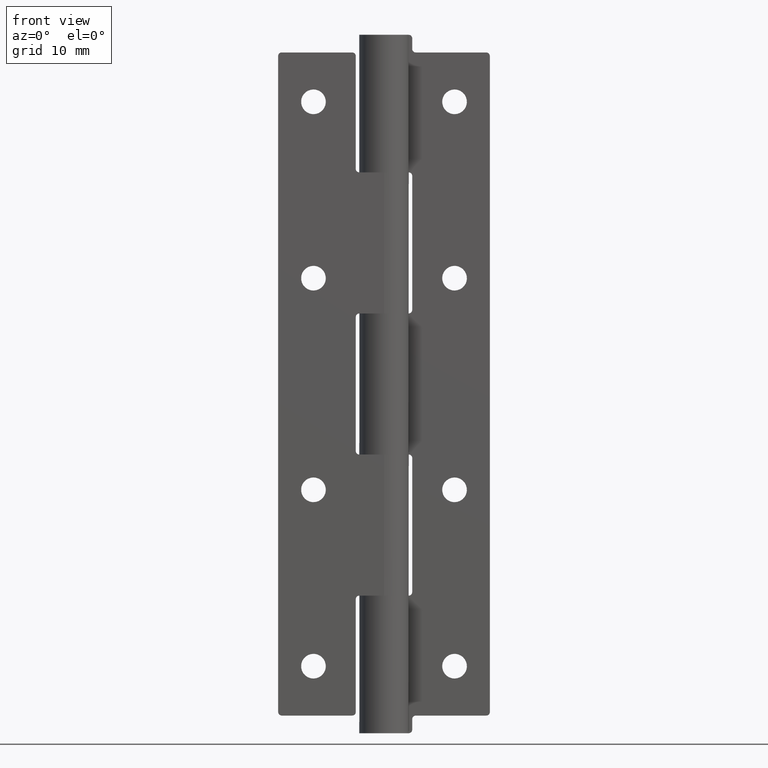
[diagram: clean part render]
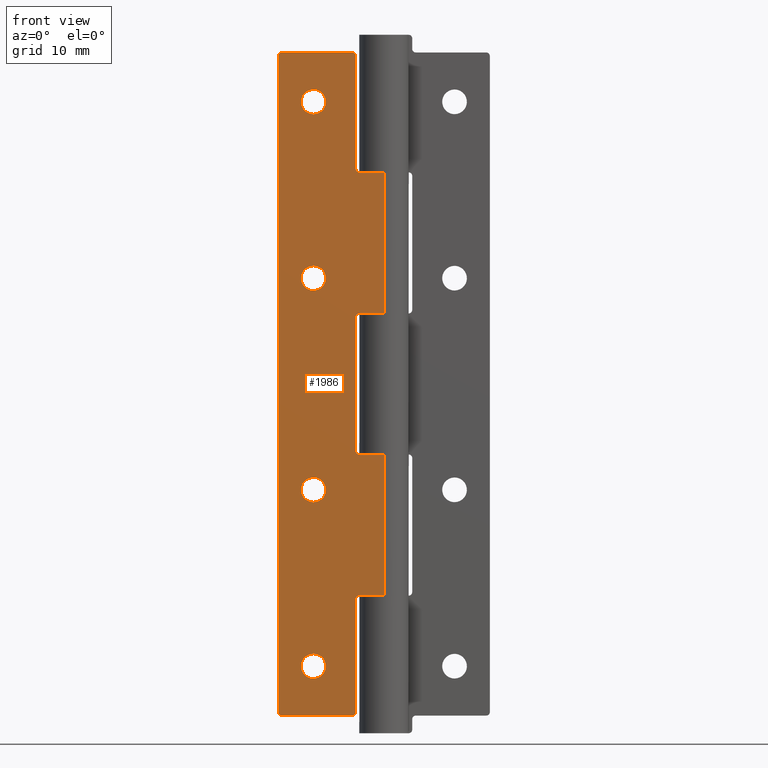
[diagram: same view with one face highlighted and labeled with its STEP entity id]
A machine part, front view. The second image highlights one B-rep face of the part: STEP entity #1986.
In plain terms, the highlighted face is a freeform B-spline surface patch.
Its self-contained STEP definition (entity closure, byte-faithful):
#317=CARTESIAN_POINT('',(-11.737766671125360,-3.499999999999950,89.706559910742385));
#318=VERTEX_POINT('',#317);
#319=CARTESIAN_POINT('',(-10.0,-3.499999999999950,87.750000000000000));
#320=VERTEX_POINT('',#319);
#321=CARTESIAN_POINT('',(-11.737766671125360,-3.499999999999951,89.706559910742385));
#322=CARTESIAN_POINT('',(-11.749999999999998,-3.499999999999950,89.603642209484875));
#323=CARTESIAN_POINT('',(-11.750000000000000,-3.499999999999950,89.500000000000000));
#324=CARTESIAN_POINT('',(-11.750000000000004,-3.499999999999950,87.750000000000000));
#325=CARTESIAN_POINT('',(-10.0,-3.499999999999950,87.750000000000000));
#333=(BOUNDED_CURVE()B_SPLINE_CURVE(2,(#321,#322,#323,#324,#325),.UNSPECIFIED.,.F.,.U.)B_SPLINE_CURVE_WITH_KNOTS((3,2,3),(0.229562473497545,0.250000000000000,0.500000000000000),.UNSPECIFIED.)CURVE()GEOMETRIC_REPRESENTATION_ITEM()RATIONAL_B_SPLINE_CURVE((0.956026754152410,0.976055948312443,1.0,0.707106781186547,1.0))REPRESENTATION_ITEM(''));
#334=EDGE_CURVE('',#318,#320,#333,.T.);
#336=CARTESIAN_POINT('',(-8.253264102773130,-3.499999999999950,89.393165055627662));
#337=VERTEX_POINT('',#336);
#338=CARTESIAN_POINT('',(-10.0,-3.499999999999950,87.750000000000000));
#339=CARTESIAN_POINT('',(-8.353764383266904,-3.499999999999951,87.749999999999986));
#340=CARTESIAN_POINT('',(-8.253264102773130,-3.499999999999950,89.393165055627662));
#348=(BOUNDED_CURVE()B_SPLINE_CURVE(2,(#338,#339,#340),.UNSPECIFIED.,.F.,.U.)B_SPLINE_CURVE_WITH_KNOTS((3,3),(0.500000000000000,0.739332962205157),.UNSPECIFIED.)CURVE()GEOMETRIC_REPRESENTATION_ITEM()RATIONAL_B_SPLINE_CURVE((1.0,0.719603993326293,0.976072041594307))REPRESENTATION_ITEM(''));
#349=EDGE_CURVE('',#320,#337,#348,.T.);
#416=CARTESIAN_POINT('',(-10.0,-3.499999999999950,91.250000000000000));
#417=VERTEX_POINT('',#416);
#418=CARTESIAN_POINT('',(-10.0,-3.499999999999950,91.250000000000000));
#419=CARTESIAN_POINT('',(-11.554305420247266,-3.499999999999952,91.249999999999986));
#420=CARTESIAN_POINT('',(-11.737766671125360,-3.499999999999951,89.706559910742385));
#428=(BOUNDED_CURVE()B_SPLINE_CURVE(2,(#418,#419,#420),.UNSPECIFIED.,.F.,.U.)B_SPLINE_CURVE_WITH_KNOTS((3,3),(0.0,0.229562473497545),.UNSPECIFIED.)CURVE()GEOMETRIC_REPRESENTATION_ITEM()RATIONAL_B_SPLINE_CURVE((1.0,0.731050832874105,0.956026754152410))REPRESENTATION_ITEM(''));
#429=EDGE_CURVE('',#417,#318,#428,.T.);
#463=CARTESIAN_POINT('',(-8.253264102773130,-3.499999999999951,89.393165055627662));
#464=CARTESIAN_POINT('',(-8.250000000000000,-3.499999999999951,89.446532664040618));
#465=CARTESIAN_POINT('',(-8.250000000000000,-3.499999999999950,89.500000000000000));
#466=CARTESIAN_POINT('',(-8.250000000000000,-3.499999999999950,91.249999999999986));
#467=CARTESIAN_POINT('',(-10.0,-3.499999999999950,91.250000000000000));
#475=(BOUNDED_CURVE()B_SPLINE_CURVE(2,(#463,#464,#465,#466,#467),.UNSPECIFIED.,.F.,.U.)B_SPLINE_CURVE_WITH_KNOTS((3,2,3),(0.739332962205156,0.750000000000000,1.0),.UNSPECIFIED.)CURVE()GEOMETRIC_REPRESENTATION_ITEM()RATIONAL_B_SPLINE_CURVE((0.976072041594305,0.987502787860253,1.0,0.707106781186547,1.0))REPRESENTATION_ITEM(''));
#476=EDGE_CURVE('',#337,#417,#475,.T.);
#503=CARTESIAN_POINT('',(-11.737766671125360,-3.499999999999950,64.706559910742371));
#504=VERTEX_POINT('',#503);
#505=CARTESIAN_POINT('',(-10.0,-3.499999999999950,62.750000000000000));
#506=VERTEX_POINT('',#505);
#507=CARTESIAN_POINT('',(-11.737766671125355,-3.499999999999951,64.706559910742371));
#508=CARTESIAN_POINT('',(-11.749999999999998,-3.499999999999950,64.603642209484860));
#509=CARTESIAN_POINT('',(-11.750000000000000,-3.499999999999950,64.500000000000000));
#510=CARTESIAN_POINT('',(-11.750000000000004,-3.499999999999950,62.750000000000000));
#511=CARTESIAN_POINT('',(-10.0,-3.499999999999950,62.750000000000000));
#519=(BOUNDED_CURVE()B_SPLINE_CURVE(2,(#507,#508,#509,#510,#511),.UNSPECIFIED.,.F.,.U.)B_SPLINE_CURVE_WITH_KNOTS((3,2,3),(0.229562473497548,0.250000000000000,0.500000000000000),.UNSPECIFIED.)CURVE()GEOMETRIC_REPRESENTATION_ITEM()RATIONAL_B_SPLINE_CURVE((0.956026754152416,0.976055948312446,1.0,0.707106781186547,1.0))REPRESENTATION_ITEM(''));
#520=EDGE_CURVE('',#504,#506,#519,.T.);
#522=CARTESIAN_POINT('',(-8.253264102773130,-3.499999999999950,64.393165055627662));
#523=VERTEX_POINT('',#522);
#524=CARTESIAN_POINT('',(-10.0,-3.499999999999950,62.750000000000000));
#525=CARTESIAN_POINT('',(-8.353764383266904,-3.499999999999951,62.749999999999993));
#526=CARTESIAN_POINT('',(-8.253264102773130,-3.499999999999950,64.393165055627662));
#534=(BOUNDED_CURVE()B_SPLINE_CURVE(2,(#524,#525,#526),.UNSPECIFIED.,.F.,.U.)B_SPLINE_CURVE_WITH_KNOTS((3,3),(0.500000000000000,0.739332962205157),.UNSPECIFIED.)CURVE()GEOMETRIC_REPRESENTATION_ITEM()RATIONAL_B_SPLINE_CURVE((1.0,0.719603993326293,0.976072041594307))REPRESENTATION_ITEM(''));
#535=EDGE_CURVE('',#506,#523,#534,.T.);
#602=CARTESIAN_POINT('',(-10.0,-3.499999999999950,66.250000000000000));
#603=VERTEX_POINT('',#602);
#604=CARTESIAN_POINT('',(-10.0,-3.499999999999950,66.250000000000000));
#605=CARTESIAN_POINT('',(-11.554305420247292,-3.499999999999951,66.250000000000000));
#606=CARTESIAN_POINT('',(-11.737766671125355,-3.499999999999951,64.706559910742371));
#614=(BOUNDED_CURVE()B_SPLINE_CURVE(2,(#604,#605,#606),.UNSPECIFIED.,.F.,.U.)B_SPLINE_CURVE_WITH_KNOTS((3,3),(0.0,0.229562473497548),.UNSPECIFIED.)CURVE()GEOMETRIC_REPRESENTATION_ITEM()RATIONAL_B_SPLINE_CURVE((1.0,0.731050832874101,0.956026754152416))REPRESENTATION_ITEM(''));
#615=EDGE_CURVE('',#603,#504,#614,.T.);
#649=CARTESIAN_POINT('',(-8.253264102773130,-3.499999999999951,64.393165055627662));
#650=CARTESIAN_POINT('',(-8.250000000000000,-3.499999999999951,64.446532664040618));
#651=CARTESIAN_POINT('',(-8.250000000000000,-3.499999999999950,64.500000000000000));
#652=CARTESIAN_POINT('',(-8.250000000000000,-3.499999999999950,66.250000000000000));
#653=CARTESIAN_POINT('',(-10.0,-3.499999999999950,66.250000000000000));
#661=(BOUNDED_CURVE()B_SPLINE_CURVE(2,(#649,#650,#651,#652,#653),.UNSPECIFIED.,.F.,.U.)B_SPLINE_CURVE_WITH_KNOTS((3,2,3),(0.739332962205156,0.750000000000000,1.0),.UNSPECIFIED.)CURVE()GEOMETRIC_REPRESENTATION_ITEM()RATIONAL_B_SPLINE_CURVE((0.976072041594305,0.987502787860253,1.0,0.707106781186547,1.0))REPRESENTATION_ITEM(''));
#662=EDGE_CURVE('',#523,#603,#661,.T.);
#689=CARTESIAN_POINT('',(-11.737766671125360,-3.499999999999950,34.706559910742357));
#690=VERTEX_POINT('',#689);
#691=CARTESIAN_POINT('',(-10.0,-3.499999999999950,32.750000000000000));
#692=VERTEX_POINT('',#691);
#693=CARTESIAN_POINT('',(-11.737766671125364,-3.499999999999951,34.706559910742357));
#694=CARTESIAN_POINT('',(-11.749999999999998,-3.499999999999950,34.603642209484846));
#695=CARTESIAN_POINT('',(-11.750000000000000,-3.499999999999950,34.500000000000000));
#696=CARTESIAN_POINT('',(-11.750000000000004,-3.499999999999950,32.750000000000000));
#697=CARTESIAN_POINT('',(-10.0,-3.499999999999950,32.750000000000000));
#705=(BOUNDED_CURVE()B_SPLINE_CURVE(2,(#693,#694,#695,#696,#697),.UNSPECIFIED.,.F.,.U.)B_SPLINE_CURVE_WITH_KNOTS((3,2,3),(0.229562473497549,0.250000000000000,0.500000000000000),.UNSPECIFIED.)CURVE()GEOMETRIC_REPRESENTATION_ITEM()RATIONAL_B_SPLINE_CURVE((0.956026754152419,0.976055948312448,1.0,0.707106781186547,1.0))REPRESENTATION_ITEM(''));
#706=EDGE_CURVE('',#690,#692,#705,.T.);
#708=CARTESIAN_POINT('',(-8.253264102773130,-3.499999999999950,34.393165055627676));
#709=VERTEX_POINT('',#708);
#710=CARTESIAN_POINT('',(-10.0,-3.499999999999950,32.750000000000000));
#711=CARTESIAN_POINT('',(-8.353764383266904,-3.499999999999951,32.750000000000007));
#712=CARTESIAN_POINT('',(-8.253264102773130,-3.499999999999950,34.393165055627676));
#720=(BOUNDED_CURVE()B_SPLINE_CURVE(2,(#710,#711,#712),.UNSPECIFIED.,.F.,.U.)B_SPLINE_CURVE_WITH_KNOTS((3,3),(0.500000000000000,0.739332962205157),.UNSPECIFIED.)CURVE()GEOMETRIC_REPRESENTATION_ITEM()RATIONAL_B_SPLINE_CURVE((1.0,0.719603993326293,0.976072041594307))REPRESENTATION_ITEM(''));
#721=EDGE_CURVE('',#692,#709,#720,.T.);
#788=CARTESIAN_POINT('',(-10.0,-3.499999999999950,36.250000000000007));
#789=VERTEX_POINT('',#788);
#790=CARTESIAN_POINT('',(-10.0,-3.499999999999950,36.250000000000007));
#791=CARTESIAN_POINT('',(-11.554305420247307,-3.499999999999951,36.250000000000007));
#792=CARTESIAN_POINT('',(-11.737766671125360,-3.499999999999950,34.706559910742357));
#800=(BOUNDED_CURVE()B_SPLINE_CURVE(2,(#790,#791,#792),.UNSPECIFIED.,.F.,.U.)B_SPLINE_CURVE_WITH_KNOTS((3,3),(0.0,0.229562473497549),.UNSPECIFIED.)CURVE()GEOMETRIC_REPRESENTATION_ITEM()RATIONAL_B_SPLINE_CURVE((1.0,0.731050832874100,0.956026754152419))REPRESENTATION_ITEM(''));
#801=EDGE_CURVE('',#789,#690,#800,.T.);
#835=CARTESIAN_POINT('',(-8.253264102773130,-3.499999999999950,34.393165055627669));
#836=CARTESIAN_POINT('',(-8.250000000000000,-3.499999999999951,34.446532664040618));
#837=CARTESIAN_POINT('',(-8.250000000000000,-3.499999999999950,34.500000000000000));
#838=CARTESIAN_POINT('',(-8.250000000000000,-3.499999999999950,36.250000000000007));
#839=CARTESIAN_POINT('',(-10.0,-3.499999999999950,36.250000000000007));
#847=(BOUNDED_CURVE()B_SPLINE_CURVE(2,(#835,#836,#837,#838,#839),.UNSPECIFIED.,.F.,.U.)B_SPLINE_CURVE_WITH_KNOTS((3,2,3),(0.739332962205156,0.750000000000000,1.0),.UNSPECIFIED.)CURVE()GEOMETRIC_REPRESENTATION_ITEM()RATIONAL_B_SPLINE_CURVE((0.976072041594307,0.987502787860254,1.0,0.707106781186547,1.0))REPRESENTATION_ITEM(''));
#848=EDGE_CURVE('',#709,#789,#847,.T.);
#875=CARTESIAN_POINT('',(-11.737766671125360,-3.499999999999951,9.706559910742364));
#876=VERTEX_POINT('',#875);
#877=CARTESIAN_POINT('',(-10.0,-3.499999999999950,7.750000000000000));
#878=VERTEX_POINT('',#877);
#879=CARTESIAN_POINT('',(-11.737766671125362,-3.499999999999951,9.706559910742364));
#880=CARTESIAN_POINT('',(-11.750000000000002,-3.499999999999950,9.603642209484862));
#881=CARTESIAN_POINT('',(-11.750000000000000,-3.499999999999950,9.500000000000000));
#882=CARTESIAN_POINT('',(-11.750000000000004,-3.499999999999950,7.750000000000001));
#883=CARTESIAN_POINT('',(-10.0,-3.499999999999950,7.750000000000000));
#891=(BOUNDED_CURVE()B_SPLINE_CURVE(2,(#879,#880,#881,#882,#883),.UNSPECIFIED.,.F.,.U.)B_SPLINE_CURVE_WITH_KNOTS((3,2,3),(0.229562473497548,0.250000000000000,0.500000000000000),.UNSPECIFIED.)CURVE()GEOMETRIC_REPRESENTATION_ITEM()RATIONAL_B_SPLINE_CURVE((0.956026754152417,0.976055948312447,1.0,0.707106781186547,1.0))REPRESENTATION_ITEM(''));
#892=EDGE_CURVE('',#876,#878,#891,.T.);
#894=CARTESIAN_POINT('',(-8.253264102773130,-3.499999999999950,9.393165055627669));
#895=VERTEX_POINT('',#894);
#896=CARTESIAN_POINT('',(-10.0,-3.499999999999950,7.750000000000000));
#897=CARTESIAN_POINT('',(-8.353764383266904,-3.499999999999951,7.749999999999999));
#898=CARTESIAN_POINT('',(-8.253264102773130,-3.499999999999950,9.393165055627669));
#906=(BOUNDED_CURVE()B_SPLINE_CURVE(2,(#896,#897,#898),.UNSPECIFIED.,.F.,.U.)B_SPLINE_CURVE_WITH_KNOTS((3,3),(0.500000000000000,0.739332962205157),.UNSPECIFIED.)CURVE()GEOMETRIC_REPRESENTATION_ITEM()RATIONAL_B_SPLINE_CURVE((1.0,0.719603993326293,0.976072041594307))REPRESENTATION_ITEM(''));
#907=EDGE_CURVE('',#878,#895,#906,.T.);
#974=CARTESIAN_POINT('',(-10.0,-3.499999999999950,11.250000000000000));
#975=VERTEX_POINT('',#974);
#976=CARTESIAN_POINT('',(-10.0,-3.499999999999950,11.250000000000000));
#977=CARTESIAN_POINT('',(-11.554305420247298,-3.499999999999951,11.250000000000000));
#978=CARTESIAN_POINT('',(-11.737766671125353,-3.499999999999951,9.706559910742364));
#986=(BOUNDED_CURVE()B_SPLINE_CURVE(2,(#976,#977,#978),.UNSPECIFIED.,.F.,.U.)B_SPLINE_CURVE_WITH_KNOTS((3,3),(0.0,0.229562473497548),.UNSPECIFIED.)CURVE()GEOMETRIC_REPRESENTATION_ITEM()RATIONAL_B_SPLINE_CURVE((1.0,0.731050832874101,0.956026754152417))REPRESENTATION_ITEM(''));
#987=EDGE_CURVE('',#975,#876,#986,.T.);
#1021=CARTESIAN_POINT('',(-8.253264102773130,-3.499999999999950,9.393165055627669));
#1022=CARTESIAN_POINT('',(-8.250000000000000,-3.499999999999950,9.446532664040618));
#1023=CARTESIAN_POINT('',(-8.250000000000000,-3.499999999999950,9.500000000000000));
#1024=CARTESIAN_POINT('',(-8.250000000000000,-3.499999999999950,11.250000000000000));
#1025=CARTESIAN_POINT('',(-10.0,-3.499999999999950,11.250000000000000));
#1033=(BOUNDED_CURVE()B_SPLINE_CURVE(2,(#1021,#1022,#1023,#1024,#1025),.UNSPECIFIED.,.F.,.U.)B_SPLINE_CURVE_WITH_KNOTS((3,2,3),(0.739332962205156,0.750000000000000,1.0),.UNSPECIFIED.)CURVE()GEOMETRIC_REPRESENTATION_ITEM()RATIONAL_B_SPLINE_CURVE((0.976072041594306,0.987502787860253,1.0,0.707106781186547,1.0))REPRESENTATION_ITEM(''));
#1034=EDGE_CURVE('',#895,#975,#1033,.T.);
#1070=CARTESIAN_POINT('',(-4.0,-3.499999999999950,40.0));
#1071=VERTEX_POINT('',#1070);
#1077=CARTESIAN_POINT('',(-3.500000000000000,-3.499999999999950,39.500000000000000));
#1078=VERTEX_POINT('',#1077);
#1079=CARTESIAN_POINT('',(-3.500000000000000,-3.499999999999950,39.500000000000000));
#1080=CARTESIAN_POINT('',(-4.000000000000000,-3.499999999999949,39.500000000000000));
#1081=CARTESIAN_POINT('',(-4.0,-3.499999999999950,40.0));
#1089=(BOUNDED_CURVE()B_SPLINE_CURVE(2,(#1079,#1080,#1081),.UNSPECIFIED.,.F.,.U.)CURVE()GEOMETRIC_REPRESENTATION_ITEM()QUASI_UNIFORM_CURVE()RATIONAL_B_SPLINE_CURVE((1.0,0.707106781186548,1.0))REPRESENTATION_ITEM(''));
#1090=EDGE_CURVE('',#1078,#1071,#1089,.T.);
#1131=CARTESIAN_POINT('',(-3.500000000000000,-3.499999999999950,59.500000000000000));
#1132=VERTEX_POINT('',#1131);
#1138=CARTESIAN_POINT('',(-4.0,-3.499999999999950,59.0));
#1139=VERTEX_POINT('',#1138);
#1140=CARTESIAN_POINT('',(-4.0,-3.499999999999950,59.0));
#1141=CARTESIAN_POINT('',(-4.000000000000000,-3.499999999999949,59.500000000000007));
#1142=CARTESIAN_POINT('',(-3.500000000000000,-3.499999999999950,59.500000000000000));
#1150=(BOUNDED_CURVE()B_SPLINE_CURVE(2,(#1140,#1141,#1142),.UNSPECIFIED.,.F.,.U.)CURVE()GEOMETRIC_REPRESENTATION_ITEM()QUASI_UNIFORM_CURVE()RATIONAL_B_SPLINE_CURVE((1.0,0.707106781186548,1.0))REPRESENTATION_ITEM(''));
#1151=EDGE_CURVE('',#1139,#1132,#1150,.T.);
#1192=CARTESIAN_POINT('',(-3.500000000000000,-3.499999999999950,19.500000000000000));
#1193=VERTEX_POINT('',#1192);
#1199=CARTESIAN_POINT('',(-4.0,-3.499999999999950,19.0));
#1200=VERTEX_POINT('',#1199);
#1201=CARTESIAN_POINT('',(-4.0,-3.499999999999950,19.0));
#1202=CARTESIAN_POINT('',(-4.000000000000000,-3.499999999999949,19.500000000000004));
#1203=CARTESIAN_POINT('',(-3.500000000000000,-3.499999999999950,19.500000000000000));
#1211=(BOUNDED_CURVE()B_SPLINE_CURVE(2,(#1201,#1202,#1203),.UNSPECIFIED.,.F.,.U.)CURVE()GEOMETRIC_REPRESENTATION_ITEM()QUASI_UNIFORM_CURVE()RATIONAL_B_SPLINE_CURVE((1.0,0.707106781186548,1.0))REPRESENTATION_ITEM(''));
#1212=EDGE_CURVE('',#1200,#1193,#1211,.T.);
#1236=CARTESIAN_POINT('',(-15.0,-3.500000000000000,3.0));
#1237=VERTEX_POINT('',#1236);
#1238=CARTESIAN_POINT('',(-14.500000000000000,-3.500000000000000,2.500000000000000));
#1239=VERTEX_POINT('',#1238);
#1240=CARTESIAN_POINT('',(-15.0,-3.500000000000000,3.0));
#1241=CARTESIAN_POINT('',(-15.000000000000009,-3.499999999999999,2.500000000000000));
#1242=CARTESIAN_POINT('',(-14.500000000000000,-3.500000000000000,2.500000000000000));
#1250=(BOUNDED_CURVE()B_SPLINE_CURVE(2,(#1240,#1241,#1242),.UNSPECIFIED.,.F.,.U.)CURVE()GEOMETRIC_REPRESENTATION_ITEM()QUASI_UNIFORM_CURVE()RATIONAL_B_SPLINE_CURVE((1.0,0.707106781186548,1.0))REPRESENTATION_ITEM(''));
#1251=EDGE_CURVE('',#1237,#1239,#1250,.T.);
#1314=CARTESIAN_POINT('',(-4.0,-3.499999999999950,3.0));
#1315=VERTEX_POINT('',#1314);
#1321=CARTESIAN_POINT('',(-4.500000000000000,-3.500000000000000,2.500000000000000));
#1322=VERTEX_POINT('',#1321);
#1323=CARTESIAN_POINT('',(-4.500000000000000,-3.500000000000000,2.500000000000000));
#1324=CARTESIAN_POINT('',(-4.000000000000000,-3.499999999999999,2.500000000000000));
#1325=CARTESIAN_POINT('',(-4.0,-3.499999999999950,3.0));
#1333=(BOUNDED_CURVE()B_SPLINE_CURVE(2,(#1323,#1324,#1325),.UNSPECIFIED.,.F.,.U.)CURVE()GEOMETRIC_REPRESENTATION_ITEM()QUASI_UNIFORM_CURVE()RATIONAL_B_SPLINE_CURVE((1.0,0.707106781186548,1.0))REPRESENTATION_ITEM(''));
#1334=EDGE_CURVE('',#1322,#1315,#1333,.T.);
#1375=CARTESIAN_POINT('',(-4.0,-3.499999999999950,80.0));
#1376=VERTEX_POINT('',#1375);
#1382=CARTESIAN_POINT('',(-3.500000000000000,-3.499999999999950,79.500000000000000));
#1383=VERTEX_POINT('',#1382);
#1384=CARTESIAN_POINT('',(-3.500000000000000,-3.499999999999950,79.500000000000000));
#1385=CARTESIAN_POINT('',(-4.000000000000000,-3.499999999999949,79.500000000000014));
#1386=CARTESIAN_POINT('',(-4.0,-3.499999999999950,80.0));
#1394=(BOUNDED_CURVE()B_SPLINE_CURVE(2,(#1384,#1385,#1386),.UNSPECIFIED.,.F.,.U.)CURVE()GEOMETRIC_REPRESENTATION_ITEM()QUASI_UNIFORM_CURVE()RATIONAL_B_SPLINE_CURVE((1.0,0.707106781186548,1.0))REPRESENTATION_ITEM(''));
#1395=EDGE_CURVE('',#1383,#1376,#1394,.T.);
#1419=CARTESIAN_POINT('',(-14.500000000000000,-3.500000000000000,96.500000000000000));
#1420=VERTEX_POINT('',#1419);
#1421=CARTESIAN_POINT('',(-15.0,-3.500000000000000,96.0));
#1422=VERTEX_POINT('',#1421);
#1423=CARTESIAN_POINT('',(-14.500000000000000,-3.500000000000000,96.500000000000000));
#1424=CARTESIAN_POINT('',(-15.000000000000009,-3.499999999999999,96.500000000000014));
#1425=CARTESIAN_POINT('',(-15.0,-3.500000000000000,96.0));
#1433=(BOUNDED_CURVE()B_SPLINE_CURVE(2,(#1423,#1424,#1425),.UNSPECIFIED.,.F.,.U.)CURVE()GEOMETRIC_REPRESENTATION_ITEM()QUASI_UNIFORM_CURVE()RATIONAL_B_SPLINE_CURVE((1.0,0.707106781186548,1.0))REPRESENTATION_ITEM(''));
#1434=EDGE_CURVE('',#1420,#1422,#1433,.T.);
#1497=CARTESIAN_POINT('',(-4.500000000000000,-3.500000000000000,96.500000000000000));
#1498=VERTEX_POINT('',#1497);
#1504=CARTESIAN_POINT('',(-4.0,-3.499999999999950,96.0));
#1505=VERTEX_POINT('',#1504);
#1506=CARTESIAN_POINT('',(-4.0,-3.499999999999950,96.0));
#1507=CARTESIAN_POINT('',(-4.000000000000000,-3.499999999999949,96.500000000000014));
#1508=CARTESIAN_POINT('',(-4.500000000000000,-3.499999999999950,96.500000000000000));
#1516=(BOUNDED_CURVE()B_SPLINE_CURVE(2,(#1506,#1507,#1508),.UNSPECIFIED.,.F.,.U.)CURVE()GEOMETRIC_REPRESENTATION_ITEM()QUASI_UNIFORM_CURVE()RATIONAL_B_SPLINE_CURVE((1.0,0.707106781186548,1.0))REPRESENTATION_ITEM(''));
#1517=EDGE_CURVE('',#1505,#1498,#1516,.T.);
#1540=CARTESIAN_POINT('',(0.0,-3.499999999999950,39.500000000000000));
#1541=VERTEX_POINT('',#1540);
#1542=CARTESIAN_POINT('',(0.0,-3.499999999999950,39.500000000000000));
#1543=CARTESIAN_POINT('',(-3.500000000000000,-3.499999999999950,39.500000000000000));
#1544=QUASI_UNIFORM_CURVE('',1,(#1542,#1543),.UNSPECIFIED.,.F.,.U.);
#1545=EDGE_CURVE('',#1541,#1078,#1544,.T.);
#1602=CARTESIAN_POINT('',(0.0,-3.499999999999950,59.500000000000000));
#1603=VERTEX_POINT('',#1602);
#1604=CARTESIAN_POINT('',(-3.500000000000000,-3.499999999999950,59.500000000000000));
#1605=CARTESIAN_POINT('',(0.0,-3.499999999999950,59.500000000000000));
#1606=QUASI_UNIFORM_CURVE('',1,(#1604,#1605),.UNSPECIFIED.,.F.,.U.);
#1607=EDGE_CURVE('',#1132,#1603,#1606,.T.);
#1678=CARTESIAN_POINT('',(-4.0,-3.499999999999950,40.0));
#1679=CARTESIAN_POINT('',(-4.0,-3.499999999999950,59.0));
#1680=QUASI_UNIFORM_CURVE('',1,(#1678,#1679),.UNSPECIFIED.,.F.,.U.);
#1681=EDGE_CURVE('',#1071,#1139,#1680,.T.);
#1700=CARTESIAN_POINT('',(0.0,-3.499999999999950,79.500000000000000));
#1701=VERTEX_POINT('',#1700);
#1702=CARTESIAN_POINT('',(-3.500000000000000,-3.499999999999950,79.500000000000000));
#1703=CARTESIAN_POINT('',(0.0,-3.499999999999950,79.500000000000000));
#1704=QUASI_UNIFORM_CURVE('',1,(#1702,#1703),.UNSPECIFIED.,.F.,.U.);
#1705=EDGE_CURVE('',#1383,#1701,#1704,.T.);
#1762=CARTESIAN_POINT('',(-4.0,-3.499999999999950,96.0));
#1763=CARTESIAN_POINT('',(-4.0,-3.499999999999950,80.0));
#1764=QUASI_UNIFORM_CURVE('',1,(#1762,#1763),.UNSPECIFIED.,.F.,.U.);
#1765=EDGE_CURVE('',#1505,#1376,#1764,.T.);
#1782=CARTESIAN_POINT('',(0.0,-3.499999999999950,19.500000000000000));
#1783=VERTEX_POINT('',#1782);
#1784=CARTESIAN_POINT('',(-3.500000000000000,-3.499999999999950,19.500000000000000));
#1785=CARTESIAN_POINT('',(0.0,-3.499999999999950,19.500000000000000));
#1786=QUASI_UNIFORM_CURVE('',1,(#1784,#1785),.UNSPECIFIED.,.F.,.U.);
#1787=EDGE_CURVE('',#1193,#1783,#1786,.T.);
#1858=CARTESIAN_POINT('',(-4.0,-3.499999999999950,3.0));
#1859=CARTESIAN_POINT('',(-4.0,-3.499999999999950,19.0));
#1860=QUASI_UNIFORM_CURVE('',1,(#1858,#1859),.UNSPECIFIED.,.F.,.U.);
#1861=EDGE_CURVE('',#1315,#1200,#1860,.T.);
#1878=CARTESIAN_POINT('',(-15.0,-3.500000000000000,96.0));
#1879=CARTESIAN_POINT('',(-15.0,-3.500000000000000,3.0));
#1880=QUASI_UNIFORM_CURVE('',1,(#1878,#1879),.UNSPECIFIED.,.F.,.U.);
#1881=EDGE_CURVE('',#1422,#1237,#1880,.T.);
#1898=CARTESIAN_POINT('',(-4.500000000000000,-3.500000000000000,2.500000000000000));
#1899=CARTESIAN_POINT('',(-14.500000000000000,-3.500000000000000,2.500000000000000));
#1900=QUASI_UNIFORM_CURVE('',1,(#1898,#1899),.UNSPECIFIED.,.F.,.U.);
#1901=EDGE_CURVE('',#1322,#1239,#1900,.T.);
#1912=CARTESIAN_POINT('',(-4.500000000000000,-3.500000000000000,96.500000000000000));
#1913=CARTESIAN_POINT('',(-14.500000000000000,-3.500000000000000,96.500000000000000));
#1914=QUASI_UNIFORM_CURVE('',1,(#1912,#1913),.UNSPECIFIED.,.F.,.U.);
#1915=EDGE_CURVE('',#1498,#1420,#1914,.T.);
#1927=CARTESIAN_POINT('',(-15.749249970927091,-3.500000000000000,101.195299817809800));
#1928=CARTESIAN_POINT('',(-15.749249970927091,-3.500000000000000,-2.195302339086233));
#1929=CARTESIAN_POINT('',(0.749250373258442,-3.500000000000000,101.195299817809800));
#1930=CARTESIAN_POINT('',(0.749250373258442,-3.500000000000000,-2.195302339086233));
#1931=B_SPLINE_SURFACE_WITH_KNOTS('',1,1,((#1927,#1929),(#1928,#1930)),.UNSPECIFIED.,.F.,.F.,.U.,(2,2),(2,2),(0.0,103.390602156895990),(0.0,16.498500344185530),.UNSPECIFIED.);
#1932=ORIENTED_EDGE('',*,*,#1901,.F.);
#1933=ORIENTED_EDGE('',*,*,#1334,.T.);
#1934=ORIENTED_EDGE('',*,*,#1861,.T.);
#1935=ORIENTED_EDGE('',*,*,#1212,.T.);
#1936=ORIENTED_EDGE('',*,*,#1787,.T.);
#1937=CARTESIAN_POINT('',(0.0,-3.499999999999950,39.500000000000000));
#1938=CARTESIAN_POINT('',(0.0,-3.499999999999950,19.500000000000000));
#1939=QUASI_UNIFORM_CURVE('',1,(#1937,#1938),.UNSPECIFIED.,.F.,.U.);
#1940=EDGE_CURVE('',#1541,#1783,#1939,.T.);
#1941=ORIENTED_EDGE('',*,*,#1940,.F.);
#1942=ORIENTED_EDGE('',*,*,#1545,.T.);
#1943=ORIENTED_EDGE('',*,*,#1090,.T.);
#1944=ORIENTED_EDGE('',*,*,#1681,.T.);
#1945=ORIENTED_EDGE('',*,*,#1151,.T.);
#1946=ORIENTED_EDGE('',*,*,#1607,.T.);
#1947=CARTESIAN_POINT('',(0.0,-3.499999999999950,79.500000000000000));
#1948=CARTESIAN_POINT('',(0.0,-3.499999999999950,59.500000000000000));
#1949=QUASI_UNIFORM_CURVE('',1,(#1947,#1948),.UNSPECIFIED.,.F.,.U.);
#1950=EDGE_CURVE('',#1701,#1603,#1949,.T.);
#1951=ORIENTED_EDGE('',*,*,#1950,.F.);
#1952=ORIENTED_EDGE('',*,*,#1705,.F.);
#1953=ORIENTED_EDGE('',*,*,#1395,.T.);
#1954=ORIENTED_EDGE('',*,*,#1765,.F.);
#1955=ORIENTED_EDGE('',*,*,#1517,.T.);
#1956=ORIENTED_EDGE('',*,*,#1915,.T.);
#1957=ORIENTED_EDGE('',*,*,#1434,.T.);
#1958=ORIENTED_EDGE('',*,*,#1881,.T.);
#1959=ORIENTED_EDGE('',*,*,#1251,.T.);
#1960=EDGE_LOOP('',(#1932,#1933,#1934,#1935,#1936,#1941,#1942,#1943,#1944,#1945,#1946,#1951,#1952,#1953,#1954,#1955,#1956,#1957,#1958,#1959));
#1961=FACE_OUTER_BOUND('',#1960,.T.);
#1962=ORIENTED_EDGE('',*,*,#907,.F.);
#1963=ORIENTED_EDGE('',*,*,#892,.F.);
#1964=ORIENTED_EDGE('',*,*,#987,.F.);
#1965=ORIENTED_EDGE('',*,*,#1034,.F.);
#1966=EDGE_LOOP('',(#1962,#1963,#1964,#1965));
#1967=FACE_BOUND('',#1966,.T.);
#1968=ORIENTED_EDGE('',*,*,#721,.F.);
#1969=ORIENTED_EDGE('',*,*,#706,.F.);
#1970=ORIENTED_EDGE('',*,*,#801,.F.);
#1971=ORIENTED_EDGE('',*,*,#848,.F.);
#1972=EDGE_LOOP('',(#1968,#1969,#1970,#1971));
#1973=FACE_BOUND('',#1972,.T.);
#1974=ORIENTED_EDGE('',*,*,#535,.F.);
#1975=ORIENTED_EDGE('',*,*,#520,.F.);
#1976=ORIENTED_EDGE('',*,*,#615,.F.);
#1977=ORIENTED_EDGE('',*,*,#662,.F.);
#1978=EDGE_LOOP('',(#1974,#1975,#1976,#1977));
#1979=FACE_BOUND('',#1978,.T.);
#1980=ORIENTED_EDGE('',*,*,#349,.F.);
#1981=ORIENTED_EDGE('',*,*,#334,.F.);
#1982=ORIENTED_EDGE('',*,*,#429,.F.);
#1983=ORIENTED_EDGE('',*,*,#476,.F.);
#1984=EDGE_LOOP('',(#1980,#1981,#1982,#1983));
#1985=FACE_BOUND('',#1984,.T.);
#1986=ADVANCED_FACE('',(#1961,#1967,#1973,#1979,#1985),#1931,.T.);